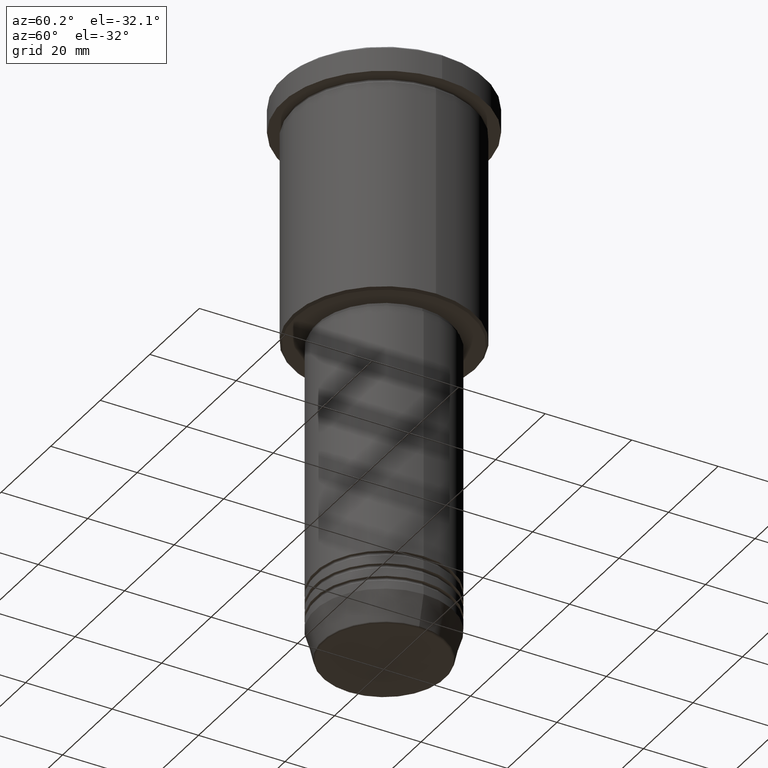
[diagram: clean part render]
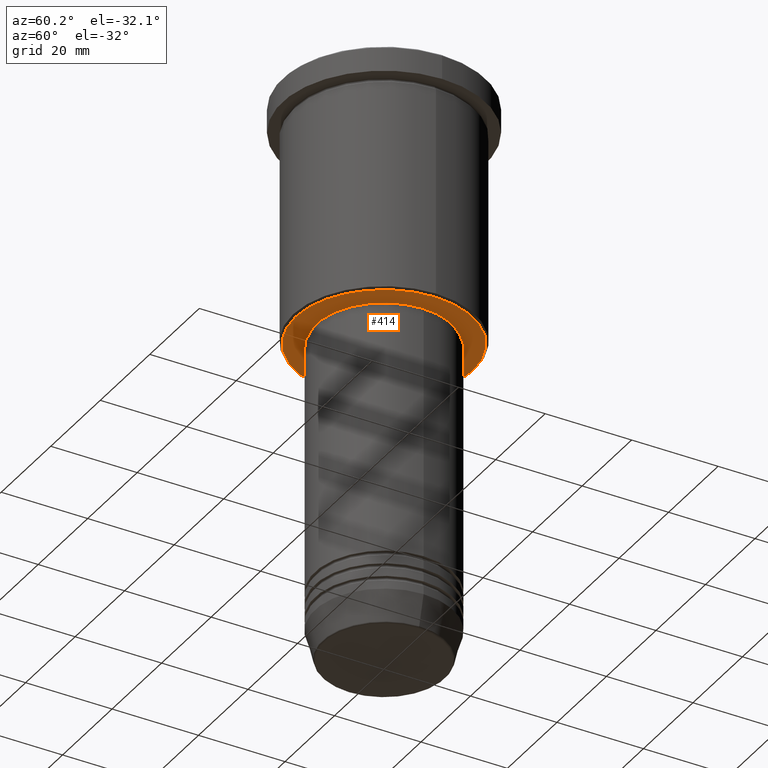
[diagram: same view with one face highlighted and labeled with its STEP entity id]
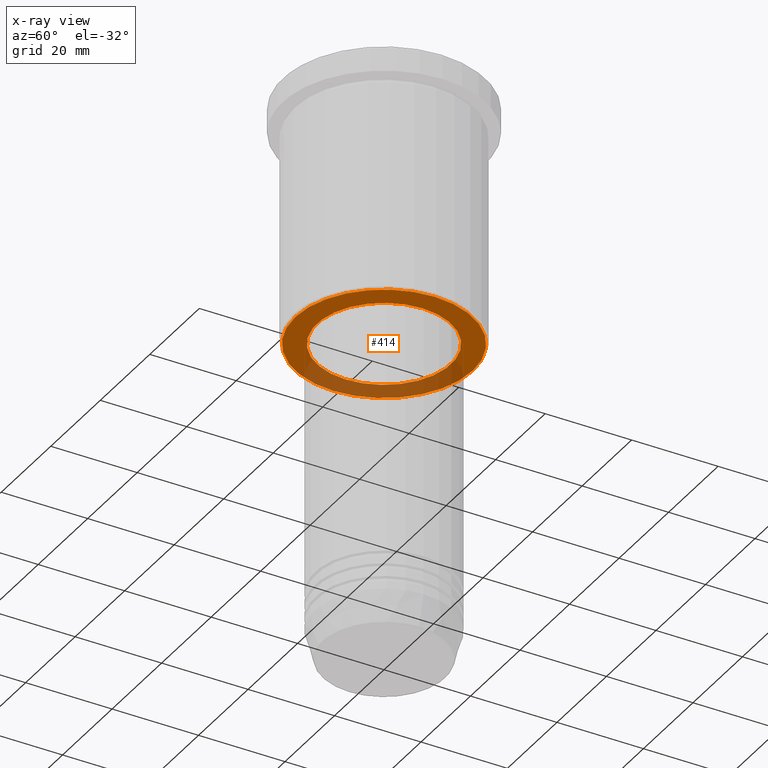
[diagram: x-ray of the same camera — body ghosted, the highlighted face saturated]
A machine part, auxiliary view. The second image highlights one B-rep face of the part: STEP entity #414.
The next image is the same camera in x-ray: the body ghosted, the highlighted face saturated — about 33% of this face is hidden behind the body in this view.
In plain terms, the highlighted planar face has unit normal (0, 0, -1).
Its self-contained STEP definition (entity closure, byte-faithful):
#13 = DIRECTION ( 'NONE',  ( -0.000000000000000000, -0.000000000000000000, 1.000000000000000000 ) ) ;
#15 = CARTESIAN_POINT ( 'NONE',  ( -15.50000000000000000, 1.898202538678397557E-15, -55.99999999999999289 ) ) ;
#54 = EDGE_CURVE ( 'NONE', #810, #1011, #1099, .T. ) ;
#73 = FACE_OUTER_BOUND ( 'NONE', #265, .T. ) ;
#101 = VERTEX_POINT ( 'NONE', #193 ) ;
#124 = CARTESIAN_POINT ( 'NONE',  ( 0.000000000000000000, 0.000000000000000000, -55.99999999999999289 ) ) ;
#181 = AXIS2_PLACEMENT_3D ( 'NONE', #977, #1170, #992 ) ;
#193 = CARTESIAN_POINT ( 'NONE',  ( 15.50000000000000000, 0.000000000000000000, -55.99999999999999289 ) ) ;
#265 = EDGE_LOOP ( 'NONE', ( #1095, #372 ) ) ;
#275 = AXIS2_PLACEMENT_3D ( 'NONE', #846, #13, #865 ) ;
#296 = CIRCLE ( 'NONE', #181, 15.50000000000000000 ) ;
#301 = DIRECTION ( 'NONE',  ( -1.000000000000000000, 0.000000000000000000, 0.000000000000000000 ) ) ;
#372 = ORIENTED_EDGE ( 'NONE', *, *, #54, .T. ) ;
#391 = EDGE_CURVE ( 'NONE', #529, #101, #296, .T. ) ;
#414 = ADVANCED_FACE ( 'NONE', ( #73, #439 ), #1180, .T. ) ;
#439 = FACE_BOUND ( 'NONE', #553, .T. ) ;
#446 = DIRECTION ( 'NONE',  ( -1.000000000000000000, 0.000000000000000000, -0.000000000000000000 ) ) ;
#449 = CARTESIAN_POINT ( 'NONE',  ( 0.000000000000000000, 21.00000000000000000, -55.99999999999999289 ) ) ;
#529 = VERTEX_POINT ( 'NONE', #15 ) ;
#553 = EDGE_LOOP ( 'NONE', ( #901, #1155 ) ) ;
#571 = AXIS2_PLACEMENT_3D ( 'NONE', #449, #811, #446 ) ;
#673 = DIRECTION ( 'NONE',  ( 0.000000000000000000, 0.000000000000000000, -1.000000000000000000 ) ) ;
#739 = CIRCLE ( 'NONE', #1160, 20.49999999999998934 ) ;
#767 = CARTESIAN_POINT ( 'NONE',  ( 0.000000000000000000, 0.000000000000000000, -55.99999999999999289 ) ) ;
#789 = DIRECTION ( 'NONE',  ( -1.000000000000000000, 0.000000000000000000, 0.000000000000000000 ) ) ;
#810 = VERTEX_POINT ( 'NONE', #887 ) ;
#811 = DIRECTION ( 'NONE',  ( 0.000000000000000000, 0.000000000000000000, -1.000000000000000000 ) ) ;
#846 = CARTESIAN_POINT ( 'NONE',  ( 0.000000000000000000, 0.000000000000000000, -55.99999999999999289 ) ) ;
#865 = DIRECTION ( 'NONE',  ( 1.000000000000000000, 0.000000000000000000, 0.000000000000000000 ) ) ;
#887 = CARTESIAN_POINT ( 'NONE',  ( -20.49999999999998934, 2.541142108230757480E-15, -55.99999999999999289 ) ) ;
#901 = ORIENTED_EDGE ( 'NONE', *, *, #1113, .T. ) ;
#977 = CARTESIAN_POINT ( 'NONE',  ( 0.000000000000000000, 0.000000000000000000, -55.99999999999999289 ) ) ;
#992 = DIRECTION ( 'NONE',  ( 1.000000000000000000, 0.000000000000000000, 0.000000000000000000 ) ) ;
#1001 = CIRCLE ( 'NONE', #275, 15.50000000000000000 ) ;
#1011 = VERTEX_POINT ( 'NONE', #1078 ) ;
#1037 = DIRECTION ( 'NONE',  ( 0.000000000000000000, 0.000000000000000000, -1.000000000000000000 ) ) ;
#1064 = EDGE_CURVE ( 'NONE', #1011, #810, #739, .T. ) ;
#1078 = CARTESIAN_POINT ( 'NONE',  ( 20.49999999999998934, 0.000000000000000000, -55.99999999999999289 ) ) ;
#1095 = ORIENTED_EDGE ( 'NONE', *, *, #1064, .T. ) ;
#1099 = CIRCLE ( 'NONE', #1115, 20.49999999999998934 ) ;
#1113 = EDGE_CURVE ( 'NONE', #101, #529, #1001, .T. ) ;
#1115 = AXIS2_PLACEMENT_3D ( 'NONE', #767, #673, #789 ) ;
#1155 = ORIENTED_EDGE ( 'NONE', *, *, #391, .T. ) ;
#1160 = AXIS2_PLACEMENT_3D ( 'NONE', #124, #1037, #301 ) ;
#1170 = DIRECTION ( 'NONE',  ( -0.000000000000000000, -0.000000000000000000, 1.000000000000000000 ) ) ;
#1180 = PLANE ( 'NONE',  #571 ) ;